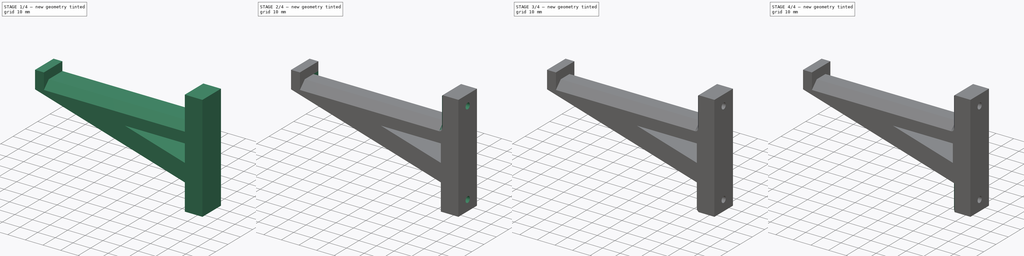
[diagram: build sequence overview — one tinted view per stage of 4, left to right]
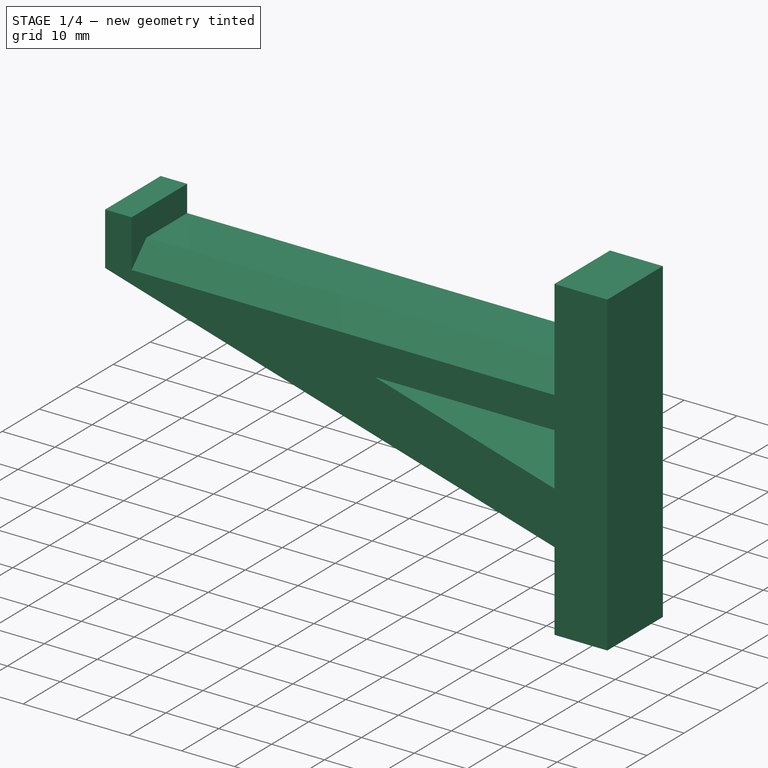
[diagram: stage 1 of 4 — iso view after this stage's code; geometry added in this stage tinted green]
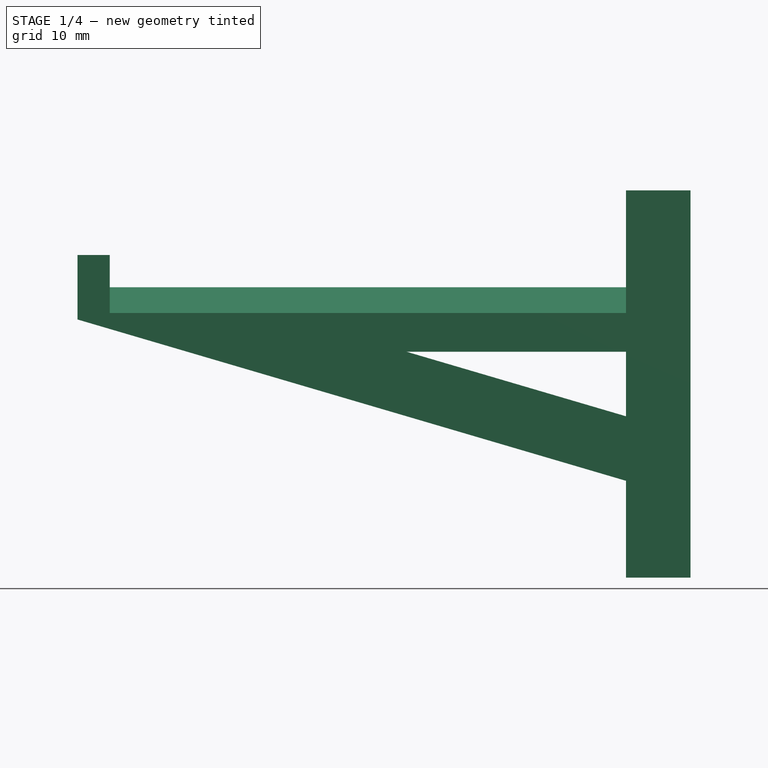
[diagram: stage 1 of 4 — front view after this stage's code; geometry added in this stage tinted green]
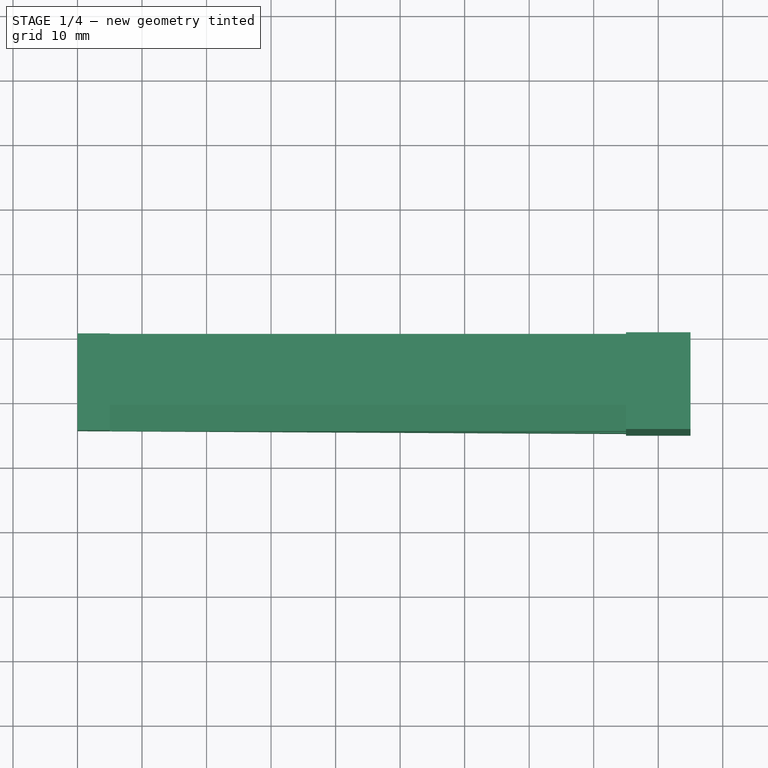
[diagram: stage 1 of 4 — top view after this stage's code; geometry added in this stage tinted green]
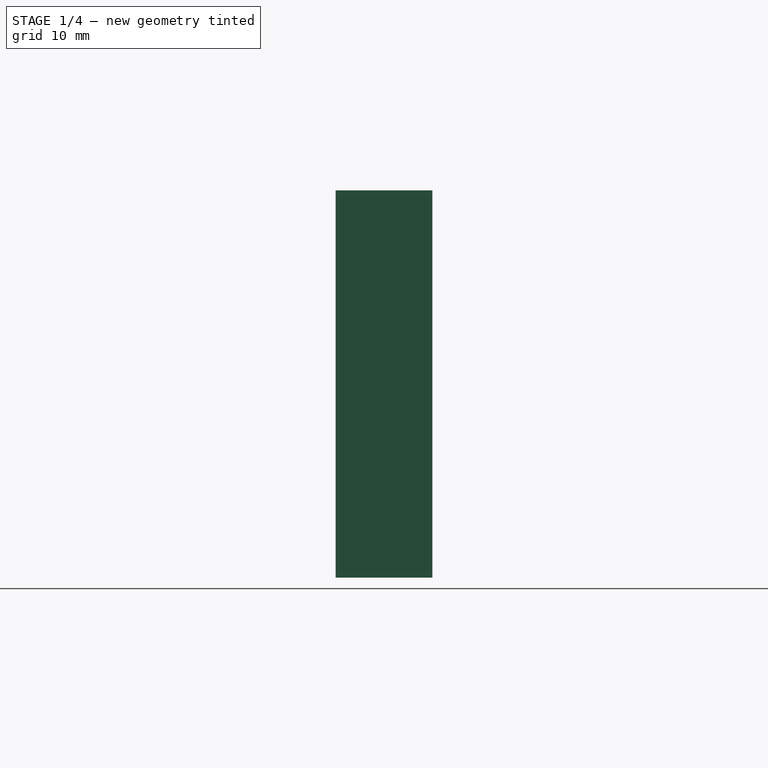
[diagram: stage 1 of 4 — right view after this stage's code; geometry added in this stage tinted green]
FCSTD DOCUMENT  (FreeCAD 0.16R)
Label: spoolholder
License: All rights reserved
LicenseURL: http://en.wikipedia.org/wiki/All_rights_reserved
objects: PartDesign::Chamfer×8, Sketcher::SketchObject×3, PartDesign::Pocket×2, PartDesign::Pad×1
note: 17 computed .brp shape members not serialized (recipe doc carries the construction recipe); baked Part::Feature solids carry a one-line shape summary decoded from their .brp

FEATURE [Sketcher::SketchObject] Sketch
  Placement = pos=(0,0,0) rot=(1,0,0;1.5708rad)
  sketch-geometry (10):
    g0: LineSegment StartX=-5 StartY=30 StartZ=0 EndX=5 EndY=30 EndZ=0
    g1: LineSegment StartX=5 StartY=30 StartZ=0 EndX=5 EndY=-30 EndZ=0
    g2: LineSegment StartX=5 StartY=-30 StartZ=0 EndX=-5 EndY=-30 EndZ=0
    g3: LineSegment StartX=-5 StartY=30 StartZ=0 EndX=-5 EndY=15 EndZ=0
    g4: LineSegment StartX=-5 StartY=15 StartZ=0 EndX=-85 EndY=15 EndZ=0
    g5: LineSegment StartX=-85 StartY=15 StartZ=0 EndX=-85 EndY=20 EndZ=0
    g6: LineSegment StartX=-85 StartY=20 StartZ=0 EndX=-90 EndY=20 EndZ=0
    g7: LineSegment StartX=-90 StartY=20 StartZ=0 EndX=-90 EndY=10 EndZ=0
    g8: LineSegment StartX=-90 StartY=10 StartZ=0 EndX=-5 EndY=-15 EndZ=0
    g9: LineSegment StartX=-5 StartY=-15 StartZ=0 EndX=-5 EndY=-30 EndZ=0
  constraints (30):
    c: Horizontal(g0)
    c: Coincident(g0,g1)
    c: Vertical(g1)
    c: Coincident(g1,g2)
    c: Horizontal(g2)
    c: Coincident(g0,g3)
    c: Vertical(g3)
    c: Coincident(g3,g4)
    c: Horizontal(g4)
    c: Coincident(g4,g5)
    c: Vertical(g5)
    c: Coincident(g5,g6)
    c: Horizontal(g6)
    c: Coincident(g7,g6)
    c: Vertical(g7)
    c: DistanceX(g6,g6) = 5
    c: DistanceX(g4,g4) = 80
    c: DistanceY(g7,g7) = 10
    c: DistanceY(g5,g5) = 5
    c: DistanceX(g0,g0) = 10
    c: DistanceX(g2,g2) = 10
    c: Coincident(g8,g7)
    c: Coincident(g9,g8)
    c: Coincident(g9,g2)
    c: Vertical(g9)
    c: DistanceY(g1,g1) = 60
    c: DistanceY(g3,g3) = 15
    c: DistanceY(g9,g9) = 15
    c: Symmetric(g0,g2,g-1)
    c: Symmetric(g0,g0,g-2)
FEATURE [PartDesign::Pad] Pad
  Length = 15
  Length2 = 100
  Placement = pos=(0,0,0) rot=(1,0,0;1.5708rad)
  Sketch = -> Sketch
  Type = 0
FEATURE [Sketcher::SketchObject] Sketch001
  ExternalGeometry = -> [Pad]
  Placement = pos=(0,-15,0) rot=(1,0,0;1.5708rad)
  Support = -> Pad [Face12]
  sketch-geometry (3):
    g0: LineSegment StartX=-39 StartY=5 StartZ=0 EndX=-5 EndY=5 EndZ=0
    g1: LineSegment StartX=-5 StartY=5 StartZ=0 EndX=-5 EndY=-5 EndZ=0
    g2: LineSegment StartX=-5 StartY=-5 StartZ=0 EndX=-39 EndY=5 EndZ=0
  constraints (9):
    c: Horizontal(g0)
    c: Coincident(g0,g1)
    c: Vertical(g1)
    c: Coincident(g2,g1)
    c: Coincident(g2,g0)
    c: DistanceY(g0,g-3) = 10
    c: DistanceX(g-3,g0) = 0
    c: DistanceY(g-4,g1) = 10
    c: Parallel(g2,g-4)
FEATURE [PartDesign::Pocket] Pocket
  Length = 15
  Placement = pos=(0,0,0) rot=(1,0,0;1.5708rad)
  Sketch = -> Sketch001
  Type = 0
FEATURE [PartDesign::Chamfer] Chamfer
  Base = -> Pocket [Edge21]
  Placement = pos=(0,0,0) rot=(1,0,0;1.5708rad)
  Size = 4
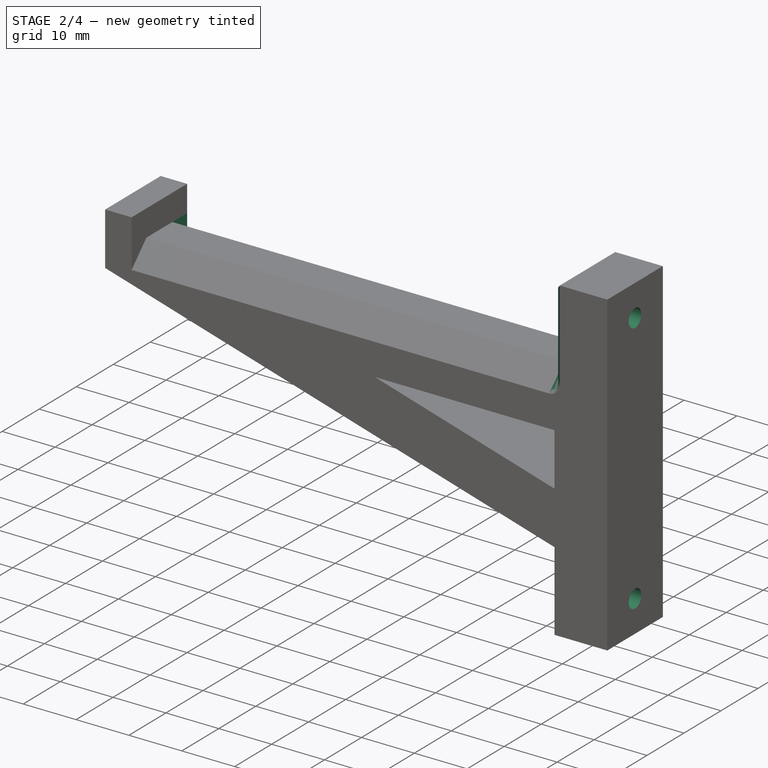
[diagram: stage 2 of 4 — iso view after this stage's code; geometry added in this stage tinted green]
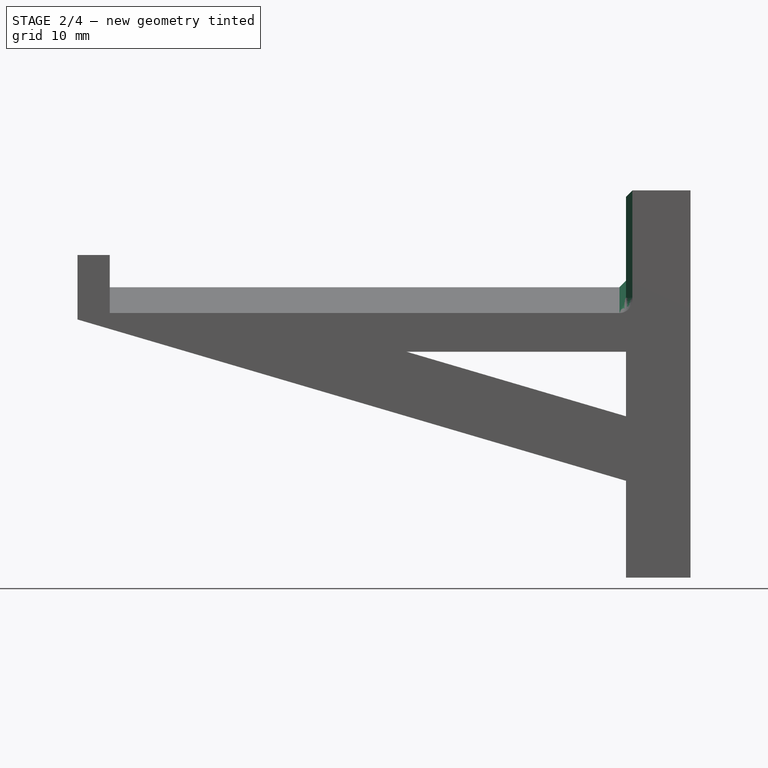
[diagram: stage 2 of 4 — front view after this stage's code; geometry added in this stage tinted green]
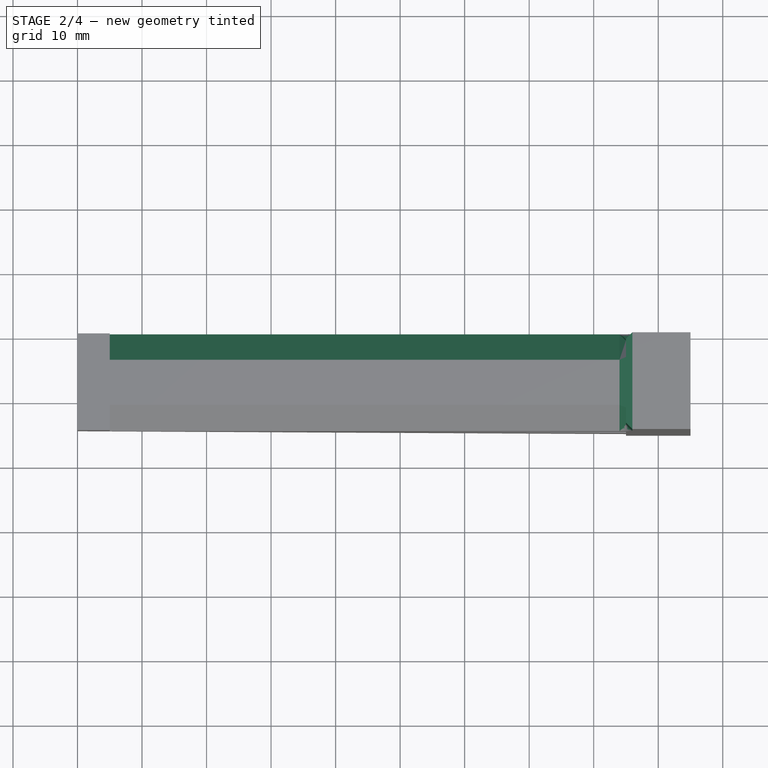
[diagram: stage 2 of 4 — top view after this stage's code; geometry added in this stage tinted green]
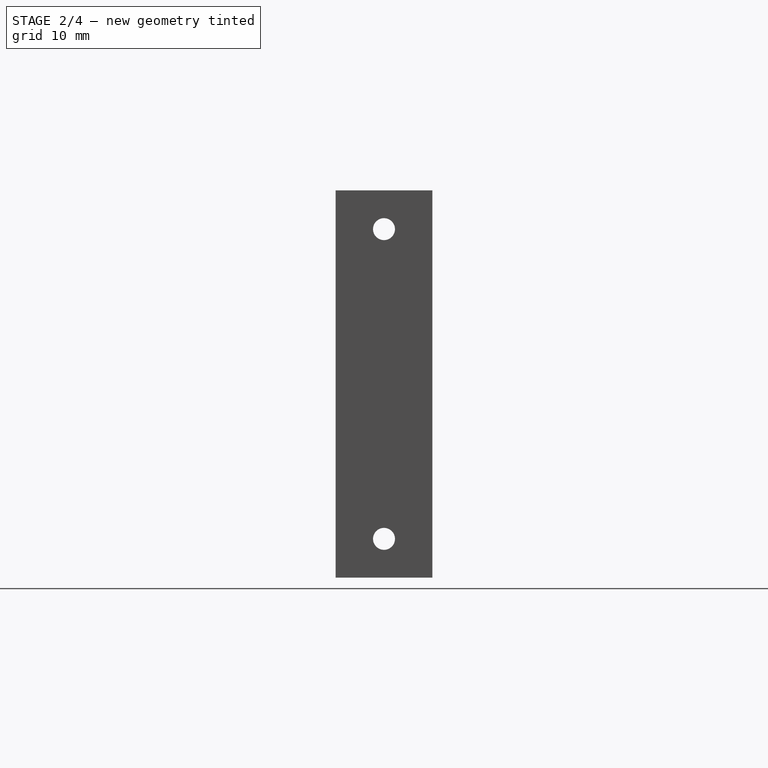
[diagram: stage 2 of 4 — right view after this stage's code; geometry added in this stage tinted green]
FEATURE [PartDesign::Chamfer] Chamfer001
  Base = -> Chamfer [Edge8]
  Placement = pos=(0,0,0) rot=(1,0,0;1.5708rad)
  Size = 4
FEATURE [Sketcher::SketchObject] Sketch002
  ExternalGeometry = -> [Chamfer001]
  Placement = pos=(-5,0,0) rot=(0.707107,0,-0.707107;3.14159rad)
  Support = -> Chamfer001 [Face1]
  sketch-geometry (2):
    g0: Circle CenterX=-24 CenterY=7.5 CenterZ=0 NormalX=0 NormalY=0 NormalZ=1 Radius=1.7
    g1: Circle CenterX=24 CenterY=7.5 CenterZ=0 NormalX=0 NormalY=0 NormalZ=1 Radius=1.7
  constraints (6):
    c: DistanceX(g-5,g0) = 6
    c: Radius(g0) = 1.7
    c: DistanceY(g-4,g0) = 7.5
    c: DistanceY(g-4,g1) = 7.5
    c: Radius(g1) = 1.7
    c: DistanceX(g-5,g1) = 54
FEATURE [PartDesign::Pocket] Pocket001
  Length = 10
  Placement = pos=(0,0,0) rot=(1,0,0;1.5708rad)
  Sketch = -> Sketch002
  Type = 0
FEATURE [PartDesign::Chamfer] Chamfer002
  Base = -> Pocket001 [Edge1,Edge2,Edge3,Edge4,Edge5,Edge6,Edge7,Edge8,Edge9]
  Placement = pos=(0,0,0) rot=(1,0,0;1.5708rad)
  Size = 1
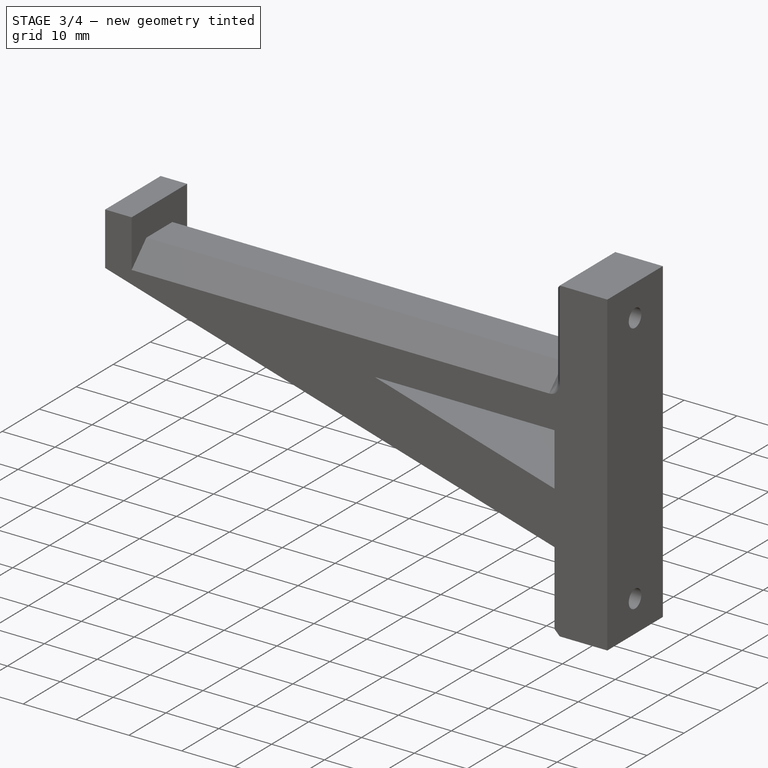
[diagram: stage 3 of 4 — iso view after this stage's code; geometry added in this stage tinted green]
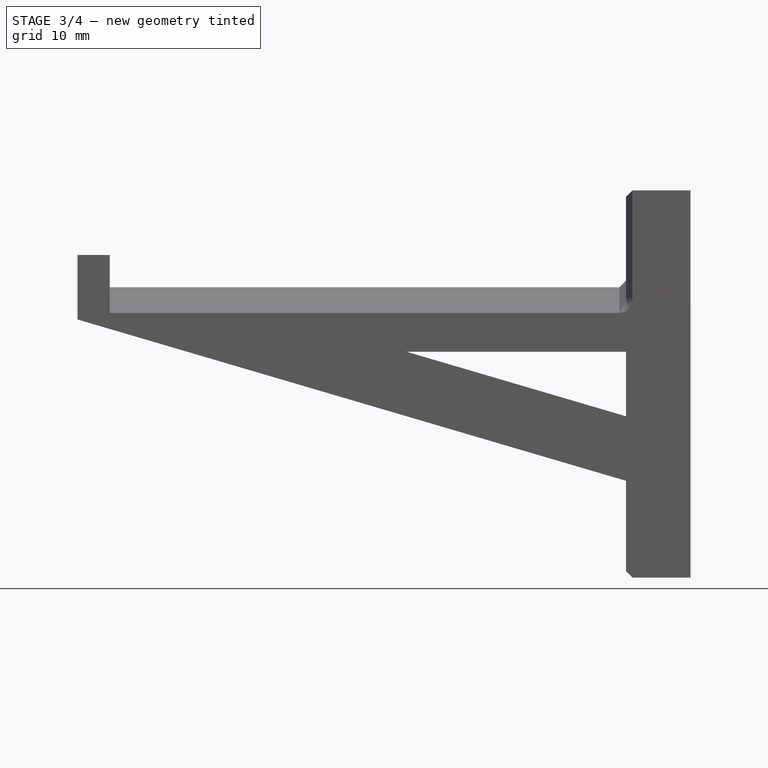
[diagram: stage 3 of 4 — front view after this stage's code; geometry added in this stage tinted green]
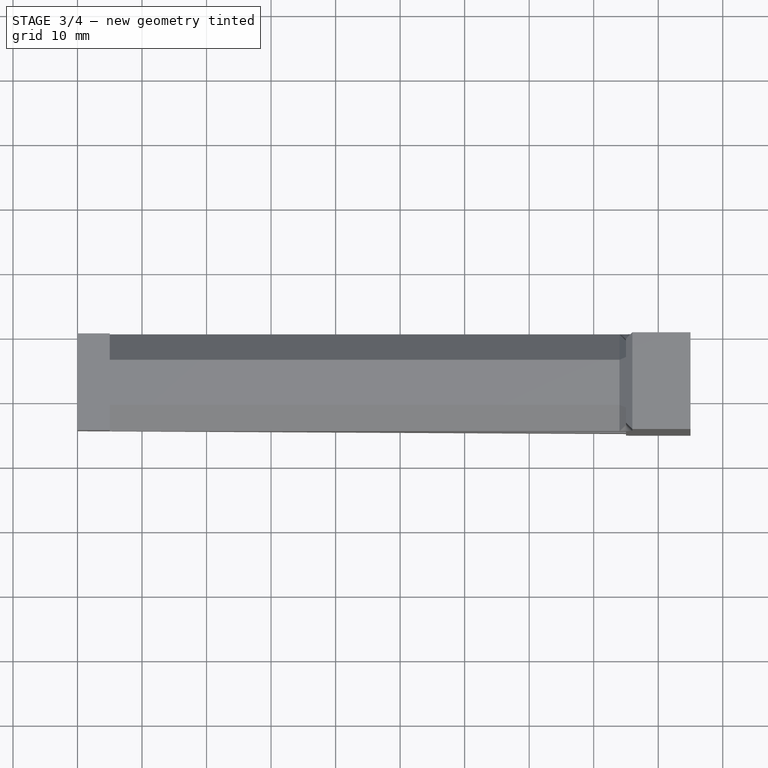
[diagram: stage 3 of 4 — top view after this stage's code; geometry added in this stage tinted green]
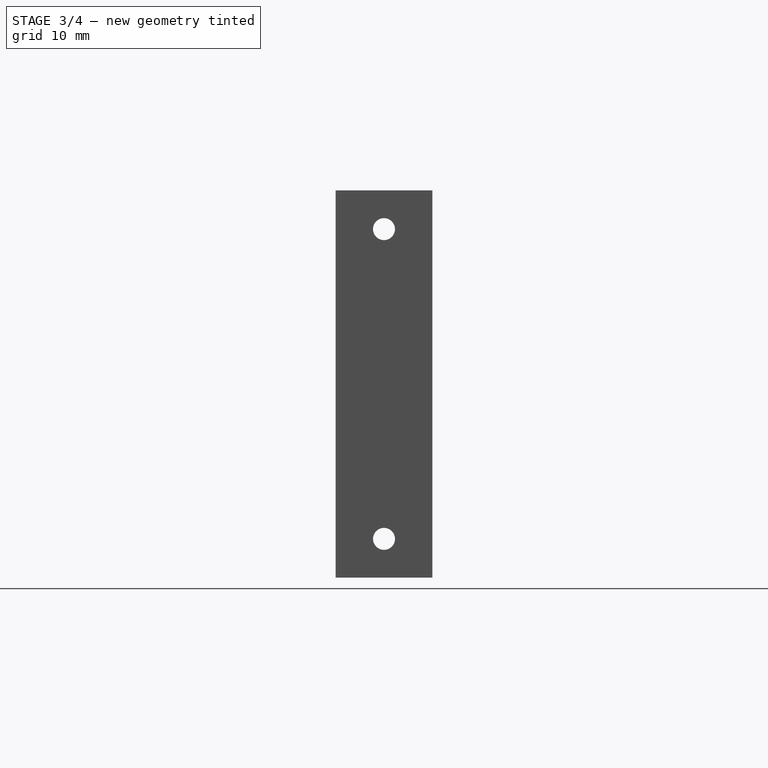
[diagram: stage 3 of 4 — right view after this stage's code; geometry added in this stage tinted green]
FEATURE [PartDesign::Chamfer] Chamfer003
  Base = -> Chamfer002 [Edge73]
  Placement = pos=(0,0,0) rot=(1,0,0;1.5708rad)
  Size = 1
FEATURE [PartDesign::Chamfer] Chamfer004
  Base = -> Chamfer003 [Edge5]
  Placement = pos=(0,0,0) rot=(1,0,0;1.5708rad)
  Size = 1
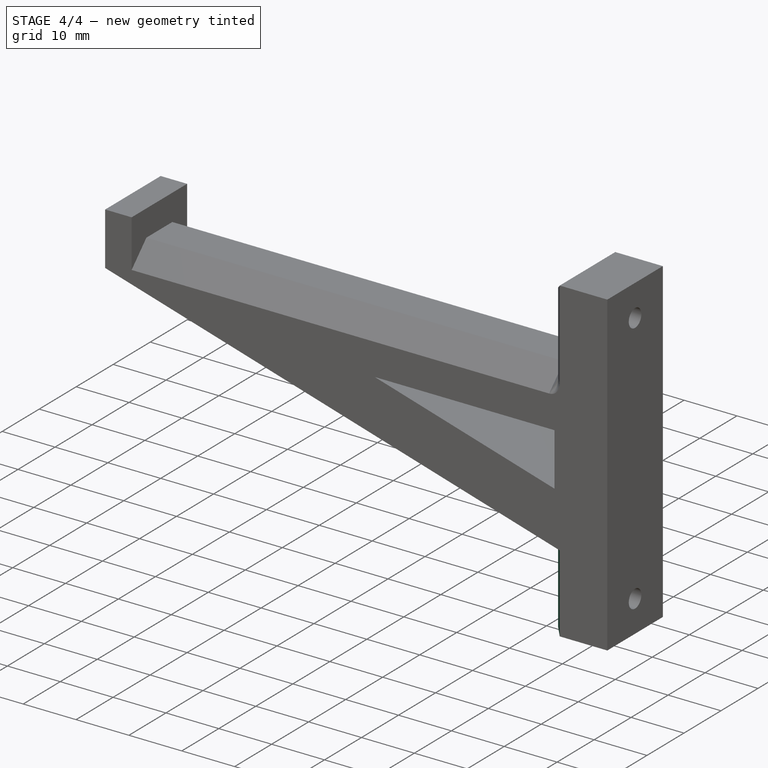
[diagram: stage 4 of 4 — iso view after this stage's code; geometry added in this stage tinted green]
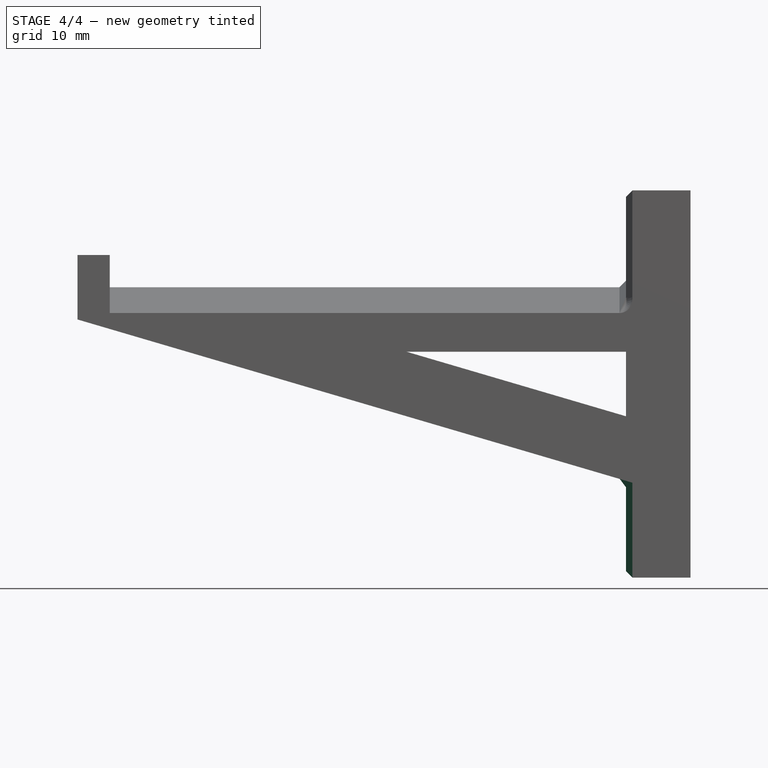
[diagram: stage 4 of 4 — front view after this stage's code; geometry added in this stage tinted green]
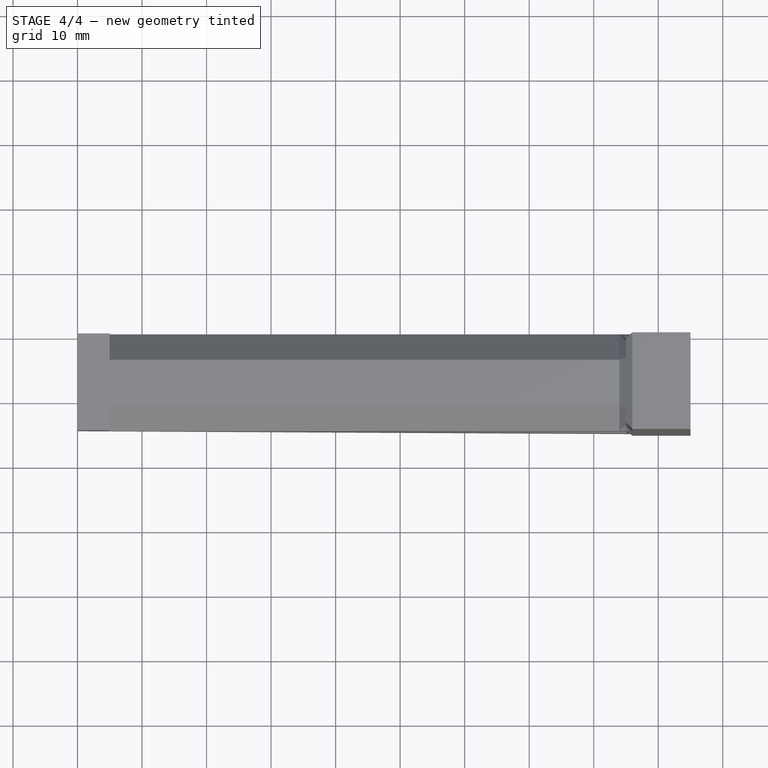
[diagram: stage 4 of 4 — top view after this stage's code; geometry added in this stage tinted green]
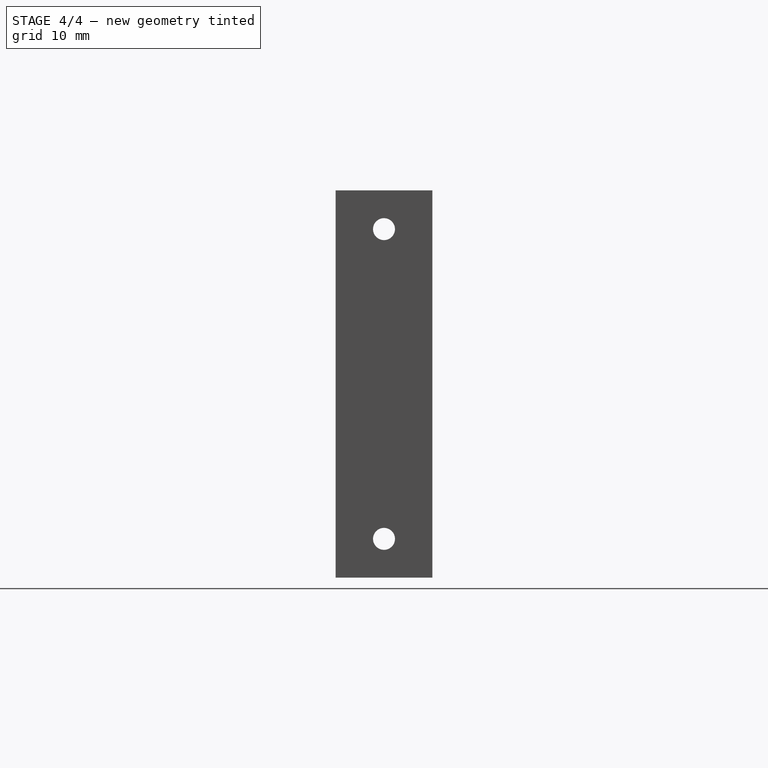
[diagram: stage 4 of 4 — right view after this stage's code; geometry added in this stage tinted green]
FEATURE [PartDesign::Chamfer] Chamfer005
  Base = -> Chamfer004 [Edge4]
  Placement = pos=(0,0,0) rot=(1,0,0;1.5708rad)
  Size = 1
FEATURE [PartDesign::Chamfer] Chamfer006
  Base = -> Chamfer005 [Edge3]
  Placement = pos=(0,0,0) rot=(1,0,0;1.5708rad)
  Size = 1
FEATURE [PartDesign::Chamfer] Chamfer007
  Base = -> Chamfer006 [Edge4]
  Placement = pos=(0,0,0) rot=(1,0,0;1.5708rad)
  Size = 1
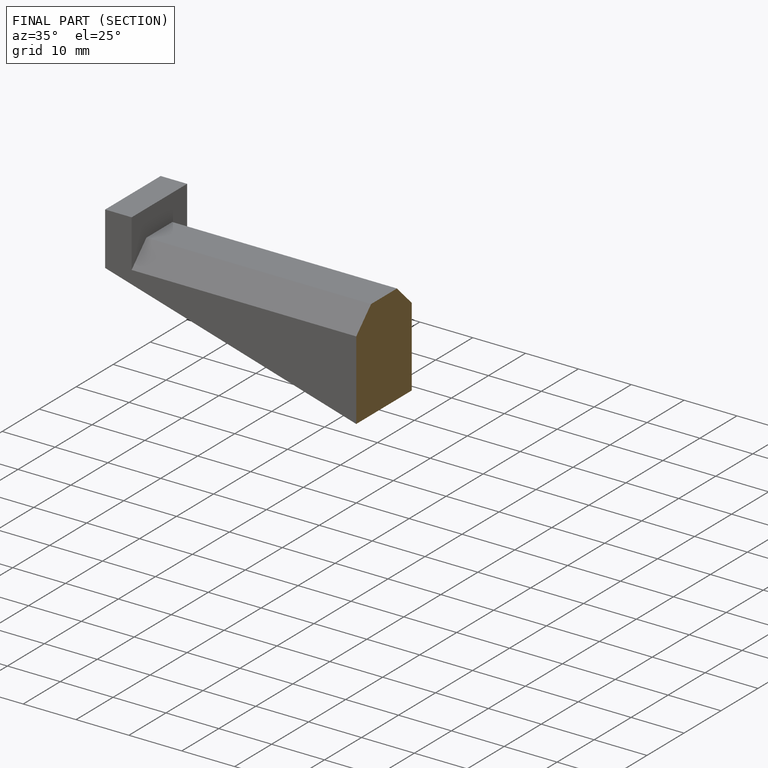
[diagram: finished part — half-section view (interior)]
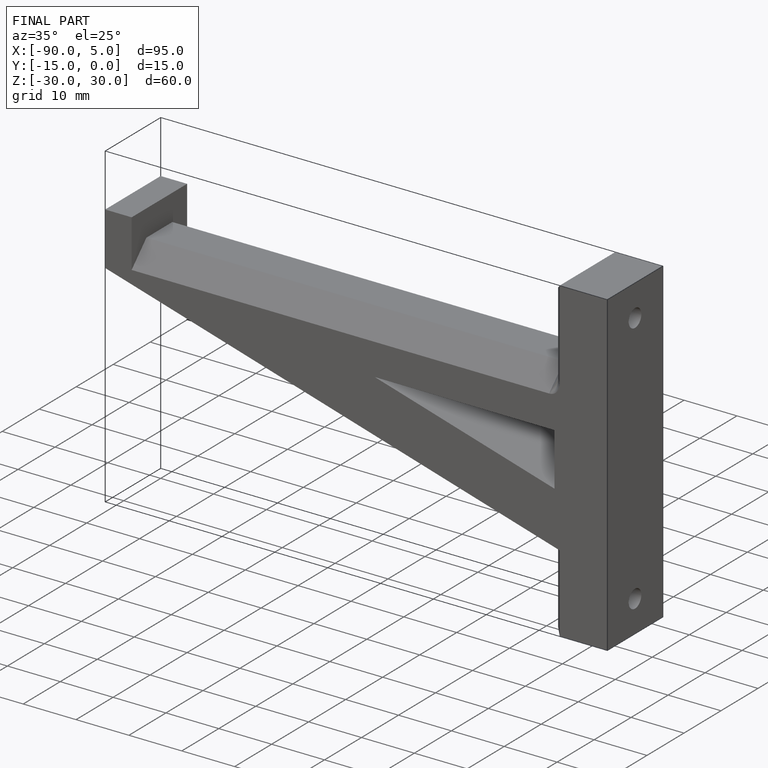
[diagram: finished part — iso view with bounding-box wireframe]
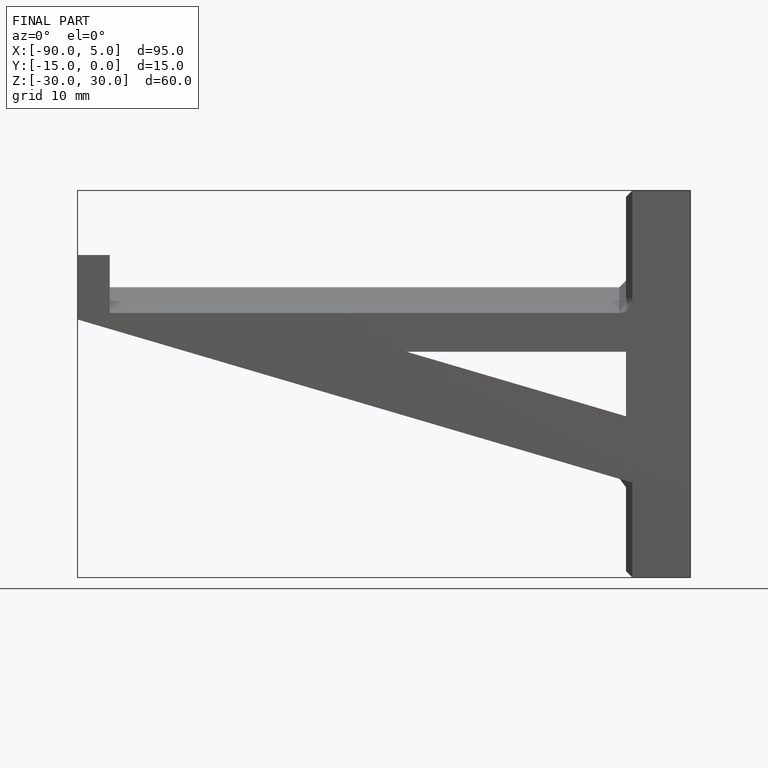
[diagram: finished part — front view with bounding-box wireframe]
